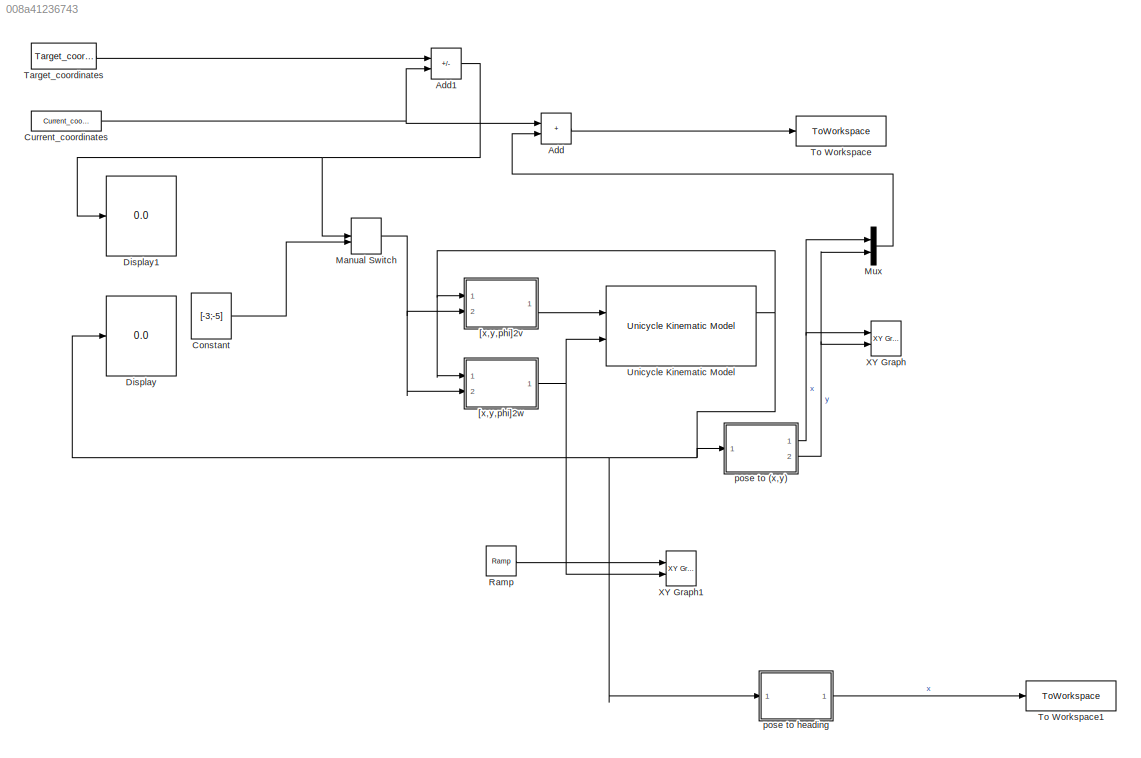
MODEL slx_008a41236743
KIND model
CONFIG AbsTol = auto
CONFIG EnableMultiTasking = off
CONFIG FixedStep = auto
CONFIG MaxStep = auto
CONFIG MinStep = auto
CONFIG RelTol = 1e-3
CONFIG SampleTimeConstraint = Unconstrained
CONFIG SolverName = VariableStepAuto
CONFIG StartTime = 0.0
CONFIG StopTime = 50
BLOCK [Sum] Add
  IconShape = rectangular
  Ports = [2, 1]
BLOCK [Sum] Add1
  IconShape = rectangular
  Inputs = +-
  Ports = [2, 1]
BLOCK [Constant] Constant
  Value = [-3;-5]
  VectorParams1D = off
BLOCK [Constant] Current_coordinates
  Value = Current_coordinates
BLOCK [Display] Display
  Decimation = 1
  Ports = [1]
BLOCK [Display] Display1
  Decimation = 1
  Ports = [1]
BLOCK [ManualSwitch] Manual Switch
BLOCK [Mux] Mux
  DisplayOption = bar
  Inputs = 2
  Ports = [2, 1]
BLOCK [Reference] Ramp  REF=simulink/Sources/Ramp
  Ports = [0, 1]
  SourceBlock = simulink/Sources/Ramp
  SourceProductBaseCode = SL
  SourceType = Ramp
BLOCK [Constant] Target_coordinates
  Value = Target_coordinates
BLOCK [ToWorkspace] To Workspace
  FixptAsFi = on
  MaxDataPoints = inf
  Ports = [1]
  SampleTime = -1
  SaveFormat = Timeseries
  VariableName = path_coordinates
BLOCK [ToWorkspace] To Workspace1
  FixptAsFi = on
  MaxDataPoints = inf
  Ports = [1]
  SampleTime = -1
  SaveFormat = Timeseries
  VariableName = heading
BLOCK [Reference] Unicycle Kinematic Model  REF=robotmobilelib/Unicycle Kinematic Model
  Ports = [2, 2]
  SourceBlock = robotmobilelib/Unicycle Kinematic Model
  SourceProductBaseCode = RO
  SourceType = Unicycle Kinematic Model
BLOCK [Reference] XY Graph  REF=simulink/Sinks/XY Graph
  Ports = [2]
  SourceBlock = simulink/Sinks/XY Graph
  SourceProductBaseCode = SL
  SourceType = XY scope.
BLOCK [Reference] XY Graph1  REF=simulink/Sinks/XY Graph
  Ports = [2]
  SourceBlock = simulink/Sinks/XY Graph
  SourceProductBaseCode = SL
  SourceType = XY scope.
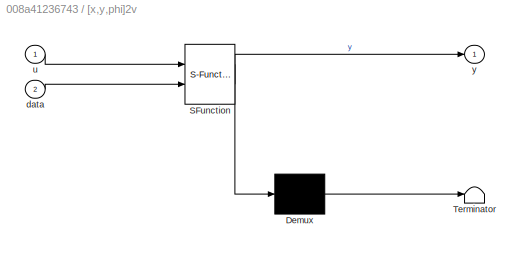
BLOCK [SubSystem] [x,y,phi]2v
  ErrorFcn = Stateflow.Translate.translate
  PermitHierarchicalResolution = ExplicitOnly
  Ports = [2, 1]
  RequestExecContextInheritance = off
  SFBlockType = MATLAB Function
  TreatAsAtomicUnit = on
BLOCK [Demux] [x,y,phi]2v/ Demux 
  Outputs = 1
  Ports = [1, 1]
BLOCK [S-Function] [x,y,phi]2v/ SFunction 
  EnableBusSupport = on
  FunctionName = sf_sfun
  PortCounts = [2 2]
  Ports = [2, 2]
  SFcnIsStateOwnerBlock = off
  SFunctionDeploymentMode = off
  Tag = Stateflow S-Function 2
BLOCK [Terminator] [x,y,phi]2v/ Terminator 
BLOCK [Inport] [x,y,phi]2v/data
  Port = 2
BLOCK [Inport] [x,y,phi]2v/u
BLOCK [Outport] [x,y,phi]2v/y
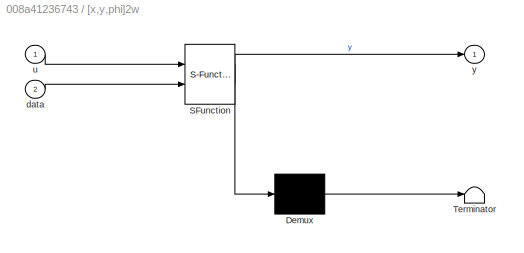
BLOCK [SubSystem] [x,y,phi]2w
  ErrorFcn = Stateflow.Translate.translate
  PermitHierarchicalResolution = ExplicitOnly
  Ports = [2, 1]
  RequestExecContextInheritance = off
  SFBlockType = MATLAB Function
  TreatAsAtomicUnit = on
BLOCK [Demux] [x,y,phi]2w/ Demux 
  Outputs = 1
  Ports = [1, 1]
BLOCK [S-Function] [x,y,phi]2w/ SFunction 
  EnableBusSupport = on
  FunctionName = sf_sfun
  PortCounts = [2 2]
  Ports = [2, 2]
  SFcnIsStateOwnerBlock = off
  SFunctionDeploymentMode = off
  Tag = Stateflow S-Function 1
BLOCK [Terminator] [x,y,phi]2w/ Terminator 
BLOCK [Inport] [x,y,phi]2w/data
  Port = 2
BLOCK [Inport] [x,y,phi]2w/u
BLOCK [Outport] [x,y,phi]2w/y
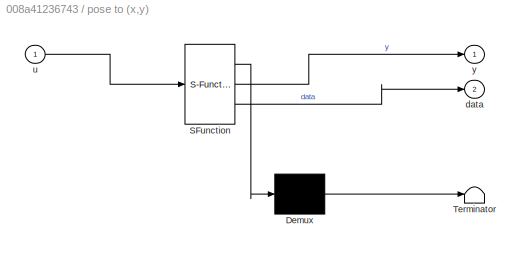
BLOCK [SubSystem] pose to (x,y)
  ErrorFcn = Stateflow.Translate.translate
  PermitHierarchicalResolution = ExplicitOnly
  Ports = [1, 2]
  RequestExecContextInheritance = off
  SFBlockType = MATLAB Function
  TreatAsAtomicUnit = on
BLOCK [Demux] pose to (x,y)/ Demux 
  Outputs = 1
  Ports = [1, 1]
BLOCK [S-Function] pose to (x,y)/ SFunction 
  EnableBusSupport = on
  FunctionName = sf_sfun
  PortCounts = [1 3]
  Ports = [1, 3]
  SFcnIsStateOwnerBlock = off
  SFunctionDeploymentMode = off
  Tag = Stateflow S-Function 3
BLOCK [Terminator] pose to (x,y)/ Terminator 
BLOCK [Outport] pose to (x,y)/data
  Port = 2
BLOCK [Inport] pose to (x,y)/u
BLOCK [Outport] pose to (x,y)/y
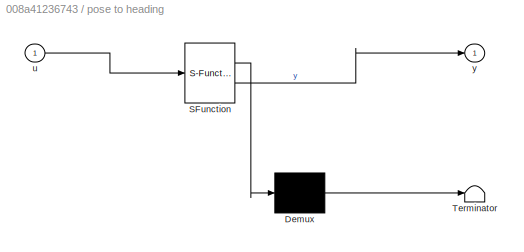
BLOCK [SubSystem] pose to heading
  ErrorFcn = Stateflow.Translate.translate
  PermitHierarchicalResolution = ExplicitOnly
  Ports = [1, 1]
  RequestExecContextInheritance = off
  SFBlockType = MATLAB Function
  TreatAsAtomicUnit = on
BLOCK [Demux] pose to heading/ Demux 
  Outputs = 1
  Ports = [1, 1]
BLOCK [S-Function] pose to heading/ SFunction 
  EnableBusSupport = on
  FunctionName = sf_sfun
  PortCounts = [1 2]
  Ports = [1, 2]
  SFcnIsStateOwnerBlock = off
  SFunctionDeploymentMode = off
  Tag = Stateflow S-Function 6
BLOCK [Terminator] pose to heading/ Terminator 
BLOCK [Inport] pose to heading/u
BLOCK [Outport] pose to heading/y
NET Add1:1 -> Display1:1, Manual Switch:1
LINE Add:1 -> To Workspace:1
LINE Constant:1 -> Manual Switch:2
NET Current_coordinates:1 -> Add1:2, Add:1
NET Manual Switch:1 -> [x,y,phi]2v:2, [x,y,phi]2w:2
LINE Mux:1 -> Add:2
LINE Ramp:1 -> XY Graph1:1
LINE Target_coordinates:1 -> Add1:1
NET Unicycle Kinematic Model:1 -> Display:1, [x,y,phi]2v:1, [x,y,phi]2w:1, pose to (x,y):1, pose to heading:1
LINE [x,y,phi]2v:1 -> Unicycle Kinematic Model:1
NET [x,y,phi]2w:1 -> Unicycle Kinematic Model:2, XY Graph1:2
NET pose to (x,y):1 -> Mux:1, XY Graph:1
NET pose to (x,y):2 -> Mux:2, XY Graph:2
LINE pose to heading:1 -> To Workspace1:1
note: NET lines group one-source signal fan-out (src -> all destinations, sorted); 1:1 wires keep LINE
CHART [x,y,phi]2v states=1 transitions=1
  STATE_LABEL 'eML_blk_kernel()'
  STATE_LABEL "SCRIPT:\nfunction y = fcn(u, data)\nfd=[data(1)-u(1) data(2)-u(2)];\nhi=[cos(u(3)) sin(u(3))];\n% hip=[-sin(u(3)) cos(u(3))];\ny =norm(hi.*(hi*fd'),2);\n"
CHART pose to (x,y) states=1 transitions=1
  STATE_LABEL 'eML_blk_kernel()'
  STATE_LABEL 'SCRIPT:\nfunction [y,data] = fcn(u)\ny=u(1);\ndata = u(2);\n'
CHART pose to heading states=1 transitions=1
  STATE_LABEL 'eML_blk_kernel()'
  STATE_LABEL 'SCRIPT:\nfunction y = fcn(u)\n\ny = u(3);\n'
CHART [x,y,phi]2w states=1 transitions=1
  STATE_LABEL 'eML_blk_kernel()'
  STATE_LABEL "SCRIPT:\nfunction y = fcn(u, data)\nfd=[data(1)-u(1) data(2)-u(2)];\n% hi=[cos(u(3)) sin(u(3))];\nhip=[-sin(u(3)) cos(u(3))];\ny =2*(hip*fd');\n"
CHART  states=0 transitions=0
CHART  states=0 transitions=0
CHART  states=0 transitions=0
CHART  states=0 transitions=0
